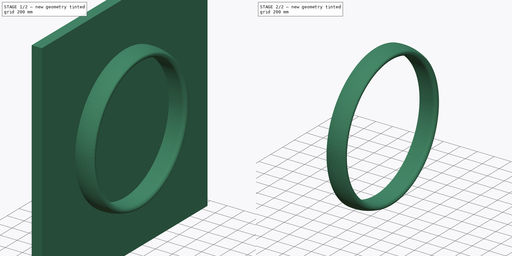
[diagram: build sequence overview — one tinted view per stage of 2, left to right]
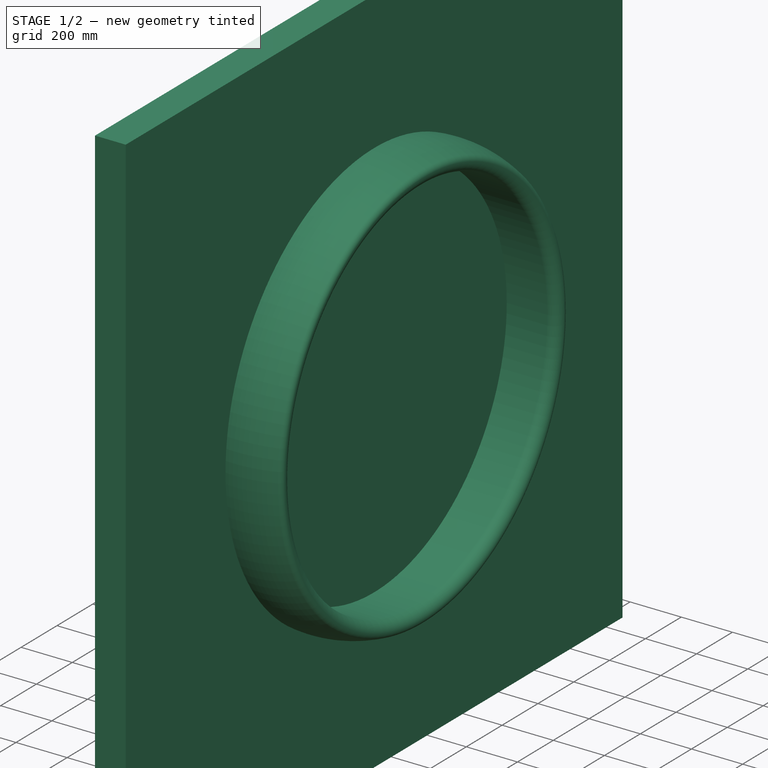
[diagram: stage 1 of 2 — iso view after this stage's code; geometry added in this stage tinted green]
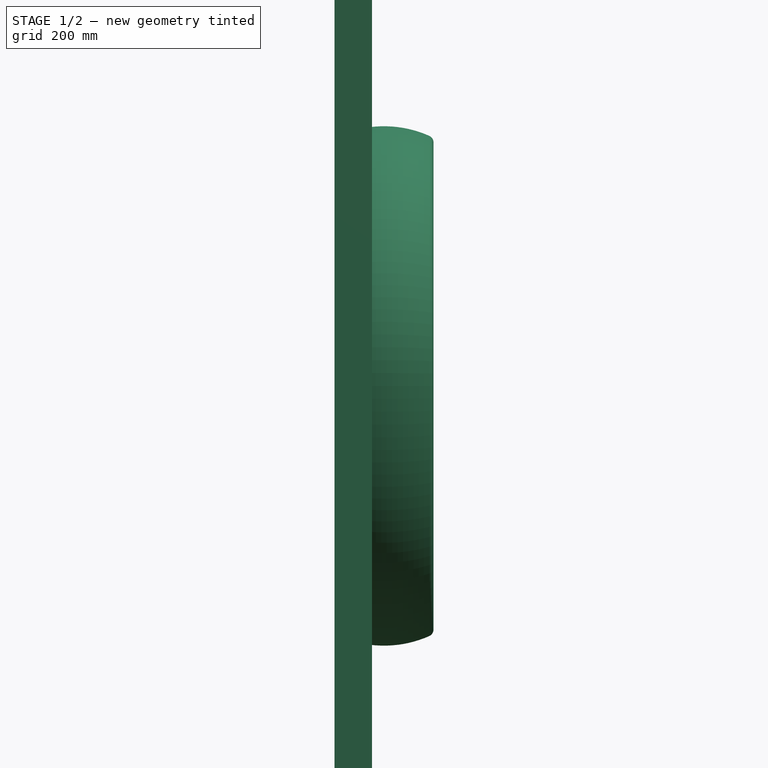
[diagram: stage 1 of 2 — front view after this stage's code; geometry added in this stage tinted green]
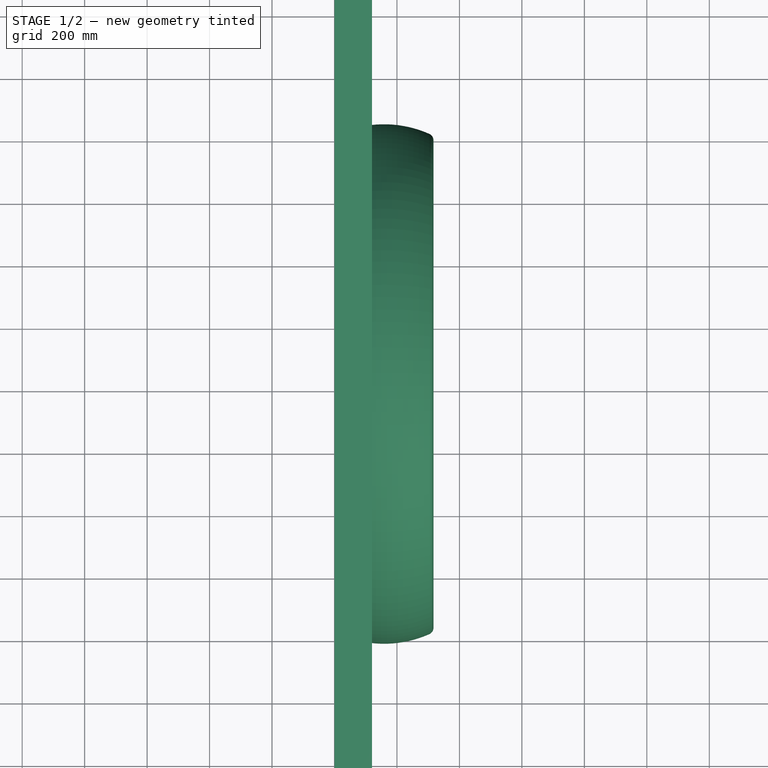
[diagram: stage 1 of 2 — top view after this stage's code; geometry added in this stage tinted green]
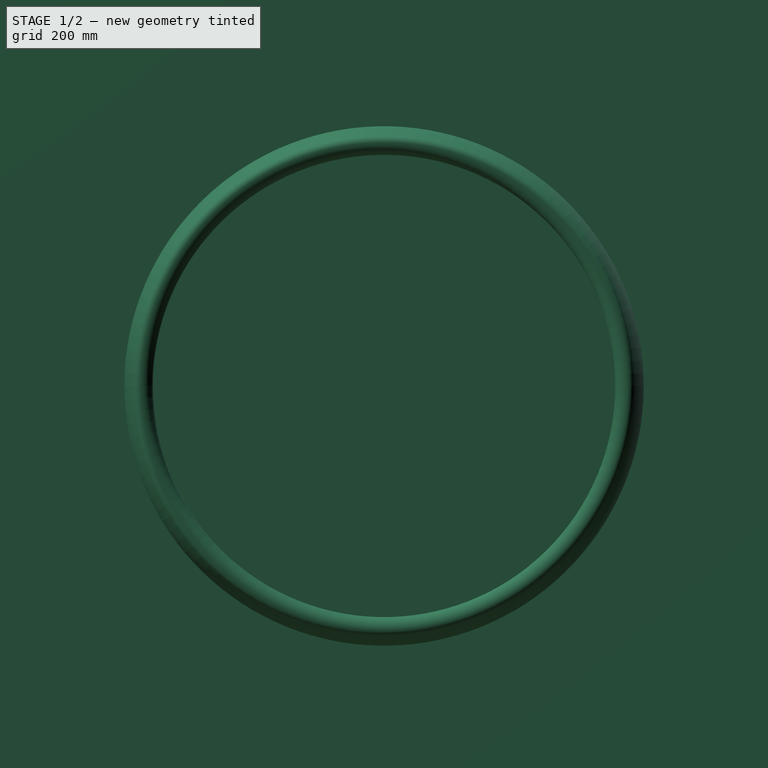
[diagram: stage 1 of 2 — right view after this stage's code; geometry added in this stage tinted green]
FCSTD DOCUMENT
Label: pr_001_v4
objects: Sketcher::SketchObject×2, PartDesign::Revolution×1, PartDesign::Pad×1, Part::Cut×1
note: 7 computed .brp shape members not serialized (recipe doc carries the construction recipe); baked Part::Feature solids carry a one-line shape summary decoded from their .brp

FEATURE [Sketcher::SketchObject] Sketch  label="Sketchwoot"
  sketch-geometry (10):
    g0: ArcOfCircle CenterX=158.5 CenterY=-474.799 CenterZ=0 NormalX=0 NormalY=0 NormalZ=1 Radius=357 StartAngle=4.29765 EndAngle=5.12713
    g1: LineSegment StartX=40 StartY=-740.07 StartZ=0 EndX=277 EndY=-740.07 EndZ=0
    g2: ArcOfCircle CenterX=40 CenterY=-780.07 CenterZ=0 NormalX=0 NormalY=0 NormalZ=1 Radius=40 StartAngle=1.5708 EndAngle=3.14159
    g3: ArcOfCircle CenterX=277 CenterY=-780.07 CenterZ=0 NormalX=0 NormalY=0 NormalZ=1 Radius=40 StartAngle=0 EndAngle=1.5708
    g4: LineSegment StartX=0 StartY=-780.07 StartZ=0 EndX=0 EndY=-780.08 EndZ=0
    g5: ArcOfCircle CenterX=23 CenterY=-780.08 CenterZ=0 NormalX=0 NormalY=0 NormalZ=1 Radius=23 StartAngle=3.14159 EndAngle=4.29765
    g6: LineSegment StartX=13.7322 StartY=-801.131 StartZ=0 EndX=14.6474 EndY=-801.534 EndZ=0
    g7: ArcOfCircle CenterX=294 CenterY=-780.08 CenterZ=0 NormalX=0 NormalY=0 NormalZ=1 Radius=23 StartAngle=5.12713 EndAngle=6.28319
    g8: LineSegment StartX=302.353 StartY=-801.534 StartZ=0 EndX=303.268 EndY=-801.131 EndZ=0
    g9: LineSegment StartX=317 StartY=-780.07 StartZ=0 EndX=317 EndY=-780.08 EndZ=0
  constraints (26):
    c: Radius(g0) = 357
    c: Horizontal(g1)
    c: Radius(g2) = 40
    c: Radius(g3) = 40
    c: Tangent(g2,g1)
    c: Tangent(g1,g3)
    c: DistanceY(g1) = -740.07
    c: DistanceX(g2,g3) = 237
    c: DistanceX(g2) = 40
    c: Radius(g5) = 23
    c: Tangent(g4,g2)
    c: Vertical(g4)
    c: Tangent(g4,g5)
    c: Distance(g4) = 0.01
    c: Tangent(g5,g0)
    c: Distance(g6) = 1
    c: Tangent(g6,g5)
    c: Tangent(g6,g0)
    c: Radius(g7) = 23
    c: Tangent(g0,g8)
    c: Tangent(g8,g7)
    c: Tangent(g3,g9)
    c: Vertical(g9)
    c: Tangent(g9,g7)
    c: Distance(g8) = 1
    c: Distance(g9) = 0.01
FEATURE [PartDesign::Revolution] Revolution
  Angle = 360
  Axis = (1,0,0)
  Base = (0,0,0)
  Sketch = -> Sketch
FEATURE [Sketcher::SketchObject] Sketch001
  Placement = pos=(0,0,0) rot=(0.57735,0.57735,0.57735;2.0944rad)
  sketch-geometry (4):
    g0: LineSegment StartX=-1386.59 StartY=1370.98 StartZ=0 EndX=1386.59 EndY=1370.98 EndZ=0
    g1: LineSegment StartX=1386.59 StartY=1370.98 StartZ=0 EndX=1386.59 EndY=-1358.49 EndZ=0
    g2: LineSegment StartX=1386.59 StartY=-1358.49 StartZ=0 EndX=-1386.59 EndY=-1358.49 EndZ=0
    g3: LineSegment StartX=-1386.59 StartY=-1358.49 StartZ=0 EndX=-1386.59 EndY=1370.98 EndZ=0
  constraints (8):
    c: Coincident(g0,g1)
    c: Coincident(g1,g2)
    c: Coincident(g2,g3)
    c: Coincident(g3,g0)
    c: Horizontal(g0)
    c: Horizontal(g2)
    c: Vertical(g1)
    c: Vertical(g3)
FEATURE [PartDesign::Pad] Pad
  Length = 120
  Length2 = 100
  Sketch = -> Sketch001
  Type = 0
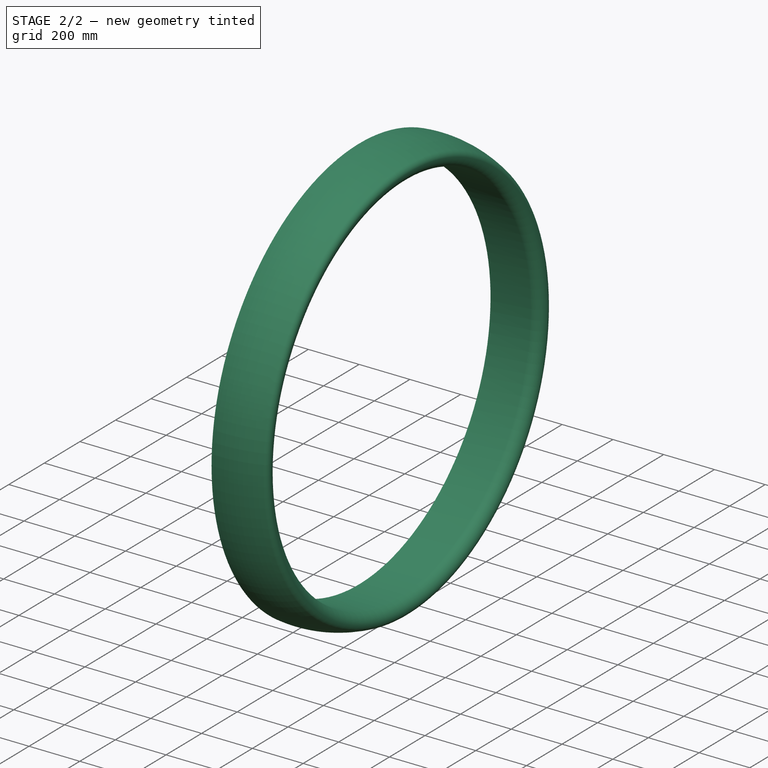
[diagram: stage 2 of 2 — iso view after this stage's code; geometry added in this stage tinted green]
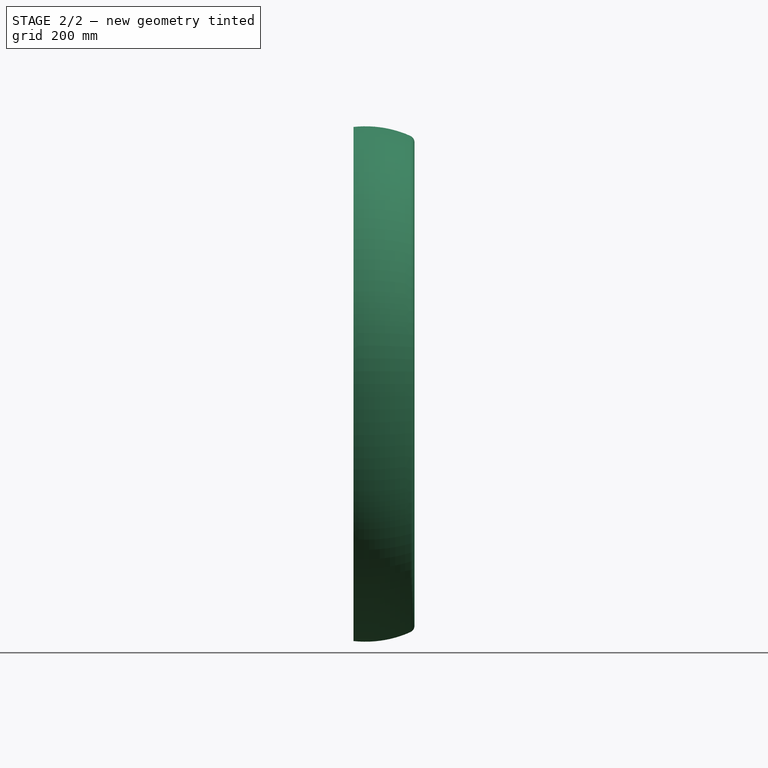
[diagram: stage 2 of 2 — front view after this stage's code; geometry added in this stage tinted green]
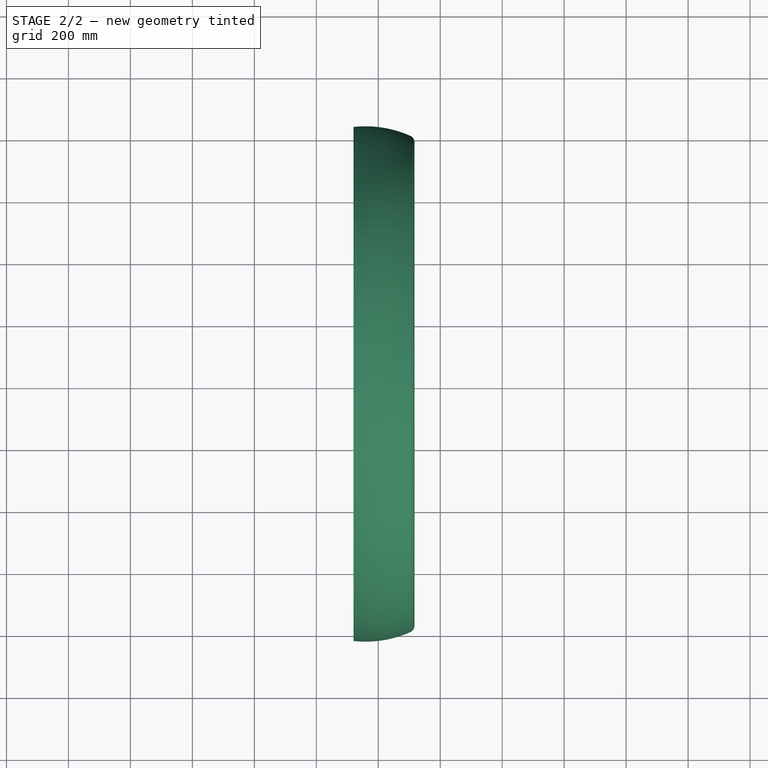
[diagram: stage 2 of 2 — top view after this stage's code; geometry added in this stage tinted green]
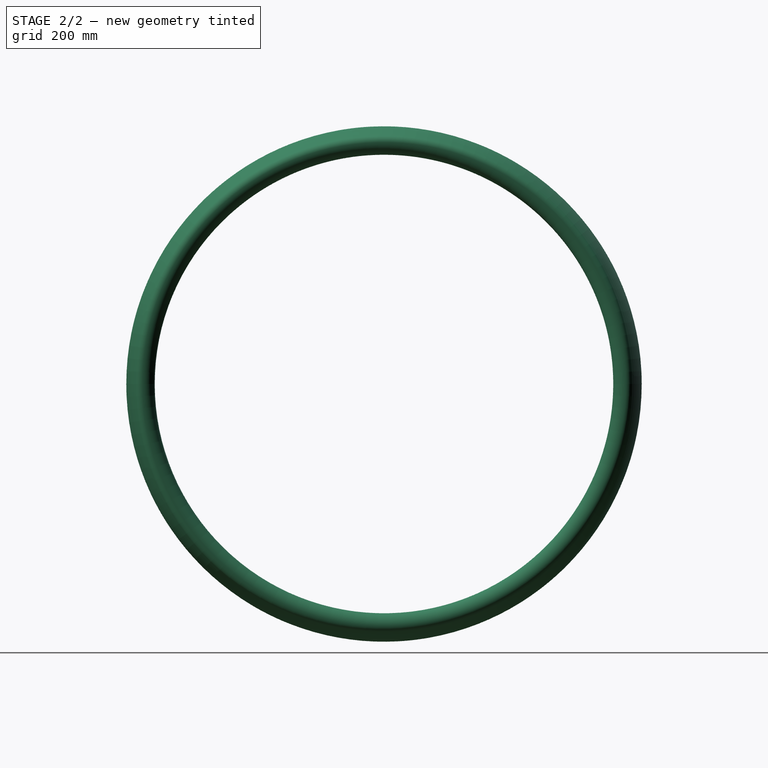
[diagram: stage 2 of 2 — right view after this stage's code; geometry added in this stage tinted green]
FEATURE [Part::Cut] Cut
  Base = -> Revolution
  Tool = -> Pad
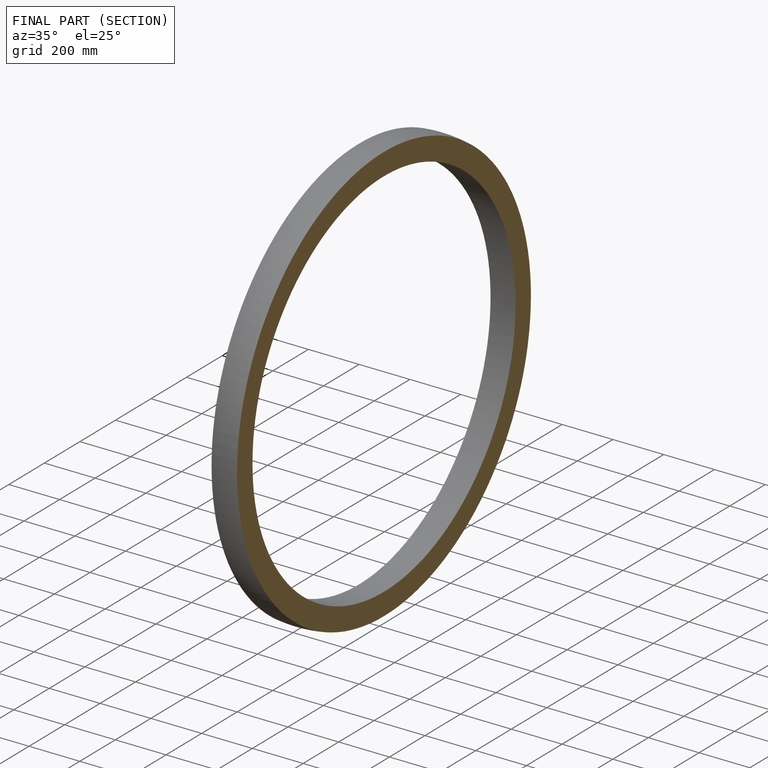
[diagram: finished part — half-section view (interior)]
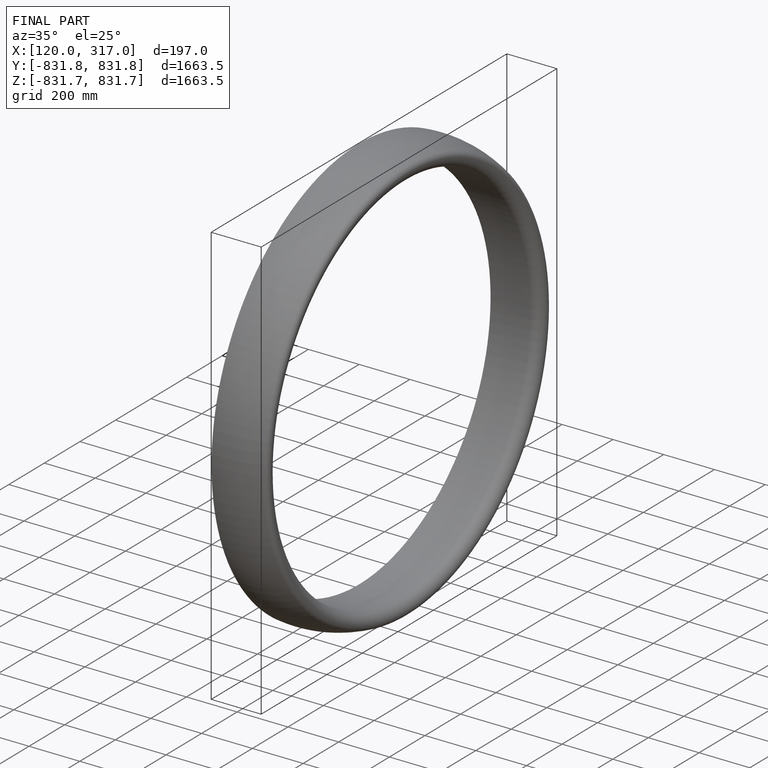
[diagram: finished part — iso view with bounding-box wireframe]
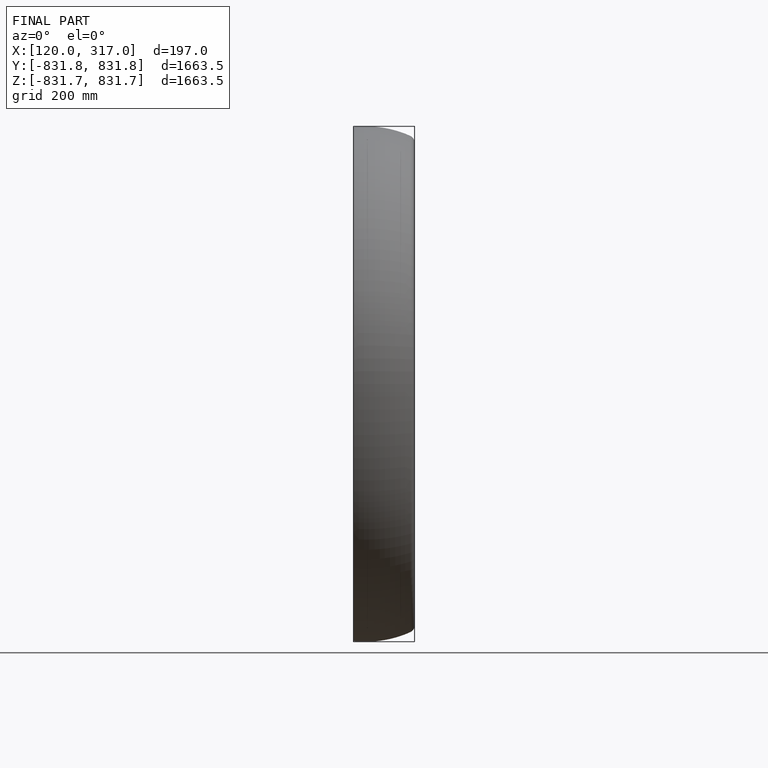
[diagram: finished part — front view with bounding-box wireframe]
